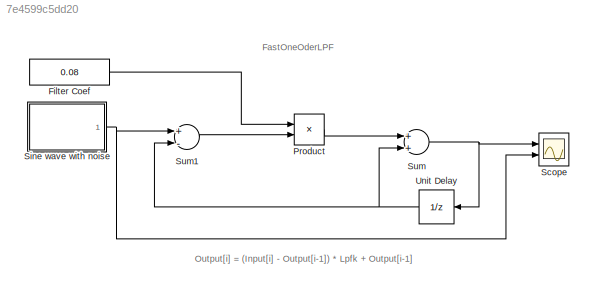
MODEL slx_7e4599c5dd20
KIND model
CONFIG InitFcn = config = getActiveConfigSet(bdroot(gcs));\nst = str2double(get_param(config, 'StartTime'));\ned = str2double(get_param(config, 'StopTime'));\nstep = str2double(get_param(config, 'FixedStep'));\nt = linspace(st, ed, (ed - st)/step + 1)';\ndata_in1 = sin(t);
BLOCK [Constant] Filter Coef
  Value = 0.08
BLOCK [Product] Product
  InputSameDT = off
  OutDataTypeStr = Inherit: Inherit via internal rule
  Ports = [2, 1]
  SaturateOnIntegerOverflow = off
BLOCK [Scope] Scope
  DataFormat = StructureWithTime
  Floating = off
  NumInputPorts = 2
  Ports = [2]
  SampleTime = 0
  ShowLegends = off
  YMax = 5~5
  YMin = -5~-5
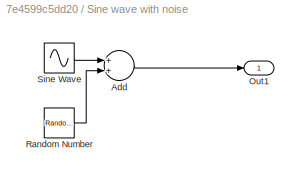
BLOCK [SubSystem] Sine wave with noise
  FunctionWithSeparateData = off
  MaskHideContents = off
  MinAlgLoopOccurrences = off
  Opaque = off
  Ports = [0, 1]
  PropExecContextOutsideSubsystem = off
  RTWSystemCode = Auto
  RequestExecContextInheritance = off
BLOCK [Sum] Sine wave with noise/Add
  InputSameDT = off
  OutDataTypeStr = Inherit: Inherit via internal rule
  Ports = [2, 1]
  SaturateOnIntegerOverflow = off
BLOCK [Outport] Sine wave with noise/Out1
  IconDisplay = Port number
BLOCK [RandomNumber] Sine wave with noise/Random Number
  Variance = 0.1
BLOCK [Sin] Sine wave with noise/Sine Wave
  Amplitude = 5
  Frequency = 0.5
  Ports = [0, 1]
  SampleTime = 0
BLOCK [Sum] Sum
  InputSameDT = off
  OutDataTypeStr = Inherit: Inherit via internal rule
  Ports = [2, 1]
  SaturateOnIntegerOverflow = off
BLOCK [Sum] Sum1
  InputSameDT = off
  Inputs = +-
  OutDataTypeStr = Inherit: Inherit via internal rule
  Ports = [2, 1]
  SaturateOnIntegerOverflow = off
BLOCK [UnitDelay] Unit Delay
  SampleTime = -1
ANNOTATION (root): FastOneOderLPF
ANNOTATION (root): Output[i] = (Input[i] - Output[i-1]) * Lpfk + Output[i-1]
LINE Filter Coef:1 -> Product:1
LINE Product:1 -> Sum:1
LINE Sine wave with noise/Add:1 -> Sine wave with noise/Out1:1
LINE Sine wave with noise/Random Number:1 -> Sine wave with noise/Add:2
LINE Sine wave with noise/Sine Wave:1 -> Sine wave with noise/Add:1
NET Sine wave with noise:1 -> Scope:2, Sum1:1
LINE Sum1:1 -> Product:2
NET Sum:1 -> Scope:1, Unit Delay:1
NET Unit Delay:1 -> Sum1:2, Sum:2
note: NET lines group one-source signal fan-out (src -> all destinations, sorted); 1:1 wires keep LINE
